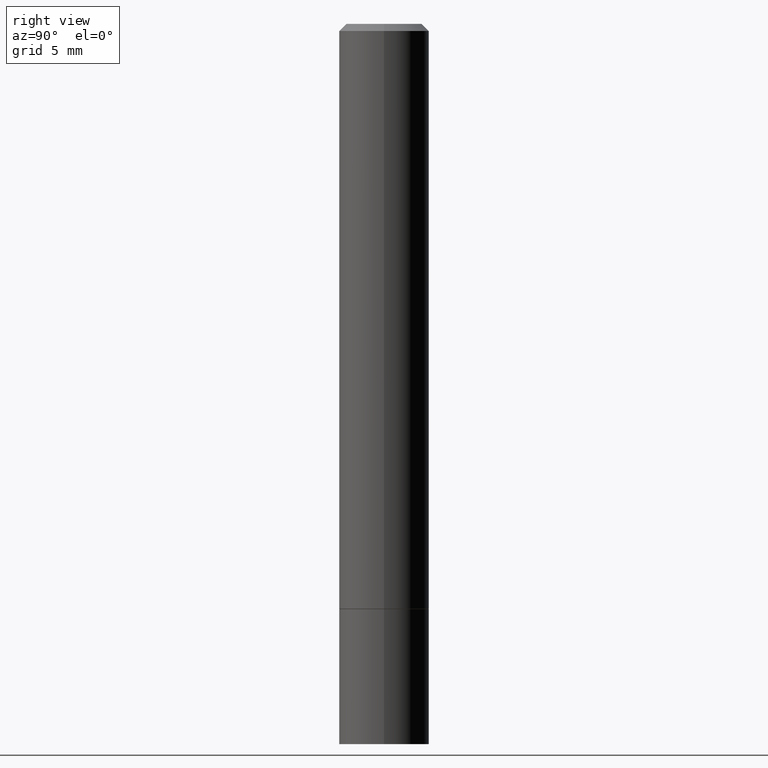
[diagram: clean part render]
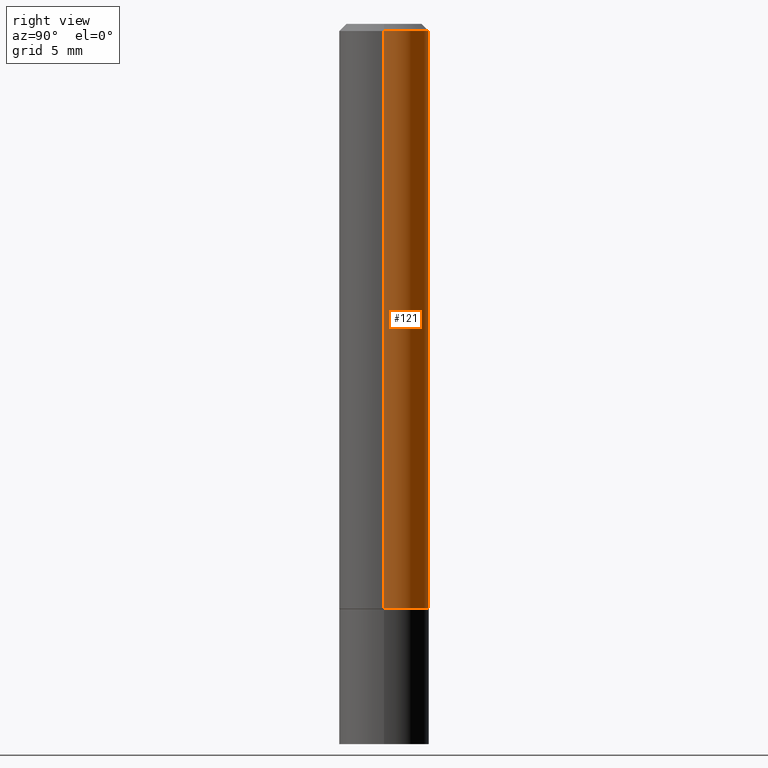
[diagram: same view with one face highlighted and labeled with its STEP entity id]
A machine part, right view. The second image highlights one B-rep face of the part: STEP entity #121.
In plain terms, the highlighted cylindrical surface (partial cylindrical patch) has radius 3.175 mm, axis along (-0, 0, 1).
Its self-contained STEP definition (entity closure, byte-faithful):
#4 = CARTESIAN_POINT ( 'NONE',  ( 0.1250000000000000000, -6.543036028992051756E-15, -1.623999999999999888 ) ) ;
#8 = CARTESIAN_POINT ( 'NONE',  ( 0.1249999999999997780, -9.273918764983027713E-16, -0.02000000000000003511 ) ) ;
#24 = CARTESIAN_POINT ( 'NONE',  ( 0.000000000000000000, 0.000000000000000000, 0.000000000000000000 ) ) ;
#26 = DIRECTION ( 'NONE',  ( 1.000000000000000000, -6.982962677686266711E-15, 4.876176775795935793E-29 ) ) ;
#27 = AXIS2_PLACEMENT_3D ( 'NONE', #24, #74, #26 ) ;
#47 = CARTESIAN_POINT ( 'NONE',  ( -0.1249999999999997780, 8.030407079339188573E-16, -0.02000000000000003511 ) ) ;
#65 = VERTEX_POINT ( 'NONE', #47 ) ;
#74 = DIRECTION ( 'NONE',  ( -2.445468806185136597E-29, 3.491481338843145583E-15, 1.000000000000000000 ) ) ;
#80 = CIRCLE ( 'NONE', #113, 0.1249999999999997780 ) ;
#82 = LINE ( 'NONE', #356, #297 ) ;
#95 = DIRECTION ( 'NONE',  ( 1.000000000000000000, -6.982962677686270655E-15, 0.000000000000000000 ) ) ;
#100 = CARTESIAN_POINT ( 'NONE',  ( 4.890937612370281041E-31, -6.982962677686302702E-17, -0.02000000000000003511 ) ) ;
#103 = DIRECTION ( 'NONE',  ( -2.445468806185136597E-29, 3.491481338843145583E-15, 1.000000000000000000 ) ) ;
#105 = ORIENTED_EDGE ( 'NONE', *, *, #173, .F. ) ;
#107 = ORIENTED_EDGE ( 'NONE', *, *, #186, .F. ) ;
#113 = AXIS2_PLACEMENT_3D ( 'NONE', #100, #103, #209 ) ;
#121 = ADVANCED_FACE ( 'NONE', ( #280 ), #207, .T. ) ;
#128 = CARTESIAN_POINT ( 'NONE',  ( -0.1249999999999999029, 8.881784197001245421E-16, -6.148668862818627323E-30 ) ) ;
#131 = CARTESIAN_POINT ( 'NONE',  ( -0.1250000000000000278, -1.981819240828937864E-15, -1.623999999999999888 ) ) ;
#136 = CARTESIAN_POINT ( 'NONE',  ( 3.971441341244661927E-29, -5.670165694281268417E-15, -1.623999999999999888 ) ) ;
#139 = CIRCLE ( 'NONE', #363, 0.1250000000000000000 ) ;
#146 = ORIENTED_EDGE ( 'NONE', *, *, #247, .T. ) ;
#164 = DIRECTION ( 'NONE',  ( -2.445468806185136597E-29, 3.491481338843145583E-15, 1.000000000000000000 ) ) ;
#173 = EDGE_CURVE ( 'NONE', #230, #298, #82, .T. ) ;
#186 = EDGE_CURVE ( 'NONE', #298, #65, #80, .T. ) ;
#195 = VERTEX_POINT ( 'NONE', #131 ) ;
#207 = CYLINDRICAL_SURFACE ( 'NONE', #27, 0.1249999999999999029 ) ;
#209 = DIRECTION ( 'NONE',  ( 1.000000000000000000, -6.982962677686265922E-15, 0.000000000000000000 ) ) ;
#215 = VECTOR ( 'NONE', #242, 39.37007874015748143 ) ;
#230 = VERTEX_POINT ( 'NONE', #4 ) ;
#242 = DIRECTION ( 'NONE',  ( -2.445468806185136877E-29, 3.491481338843145188E-15, 1.000000000000000000 ) ) ;
#247 = EDGE_CURVE ( 'NONE', #230, #195, #139, .T. ) ;
#267 = EDGE_LOOP ( 'NONE', ( #146, #348, #107, #105 ) ) ;
#279 = LINE ( 'NONE', #128, #215 ) ;
#280 = FACE_OUTER_BOUND ( 'NONE', #267, .T. ) ;
#297 = VECTOR ( 'NONE', #360, 39.37007874015748143 ) ;
#298 = VERTEX_POINT ( 'NONE', #8 ) ;
#308 = EDGE_CURVE ( 'NONE', #195, #65, #279, .T. ) ;
#348 = ORIENTED_EDGE ( 'NONE', *, *, #308, .T. ) ;
#356 = CARTESIAN_POINT ( 'NONE',  ( 0.1249999999999999029, -8.728703347107826486E-16, 6.095220969744914837E-30 ) ) ;
#360 = DIRECTION ( 'NONE',  ( -2.445468806185136877E-29, 3.491481338843145188E-15, 1.000000000000000000 ) ) ;
#363 = AXIS2_PLACEMENT_3D ( 'NONE', #136, #164, #95 ) ;